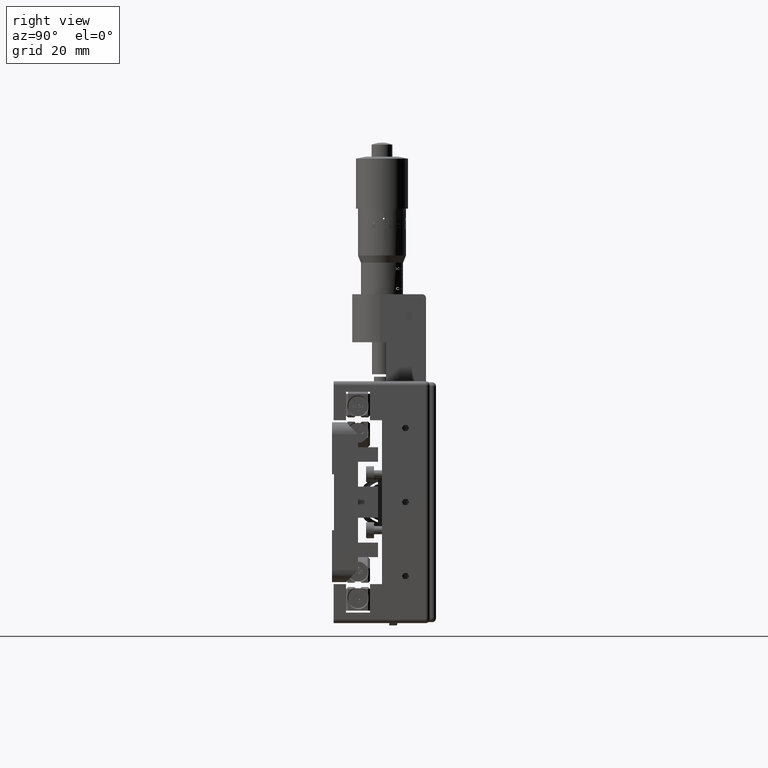
[diagram: clean part render]
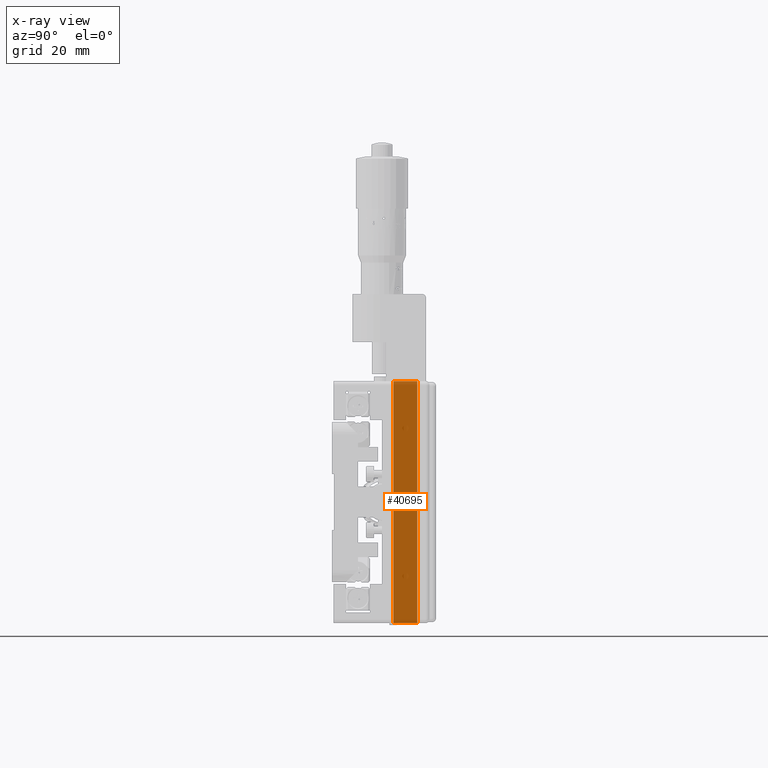
[diagram: x-ray — body ghosted, one internal face saturated and labeled with its STEP entity id]
A machine part, right view, then the same camera in x-ray: the body is ghosted and one INTERNAL B-rep face — a face not visible from any outside direction — is saturated and labeled: STEP entity #40695.
In plain terms, the highlighted planar face has unit normal (1, 0, 0).
Its self-contained STEP definition (entity closure, byte-faithful):
#580 = CARTESIAN_POINT ( 'NONE',  ( -27.60000000000124100, 21.09999999999877900, -30.25000000000009900 ) ) ;
#3373 = VECTOR ( 'NONE', #11097, 1000.000000000000000 ) ;
#9618 = ORIENTED_EDGE ( 'NONE', *, *, #51488, .F. ) ;
#10014 = ORIENTED_EDGE ( 'NONE', *, *, #64776, .T. ) ;
#11097 = DIRECTION ( 'NONE',  ( -0.0000000000000000000, -0.0000000000000000000, 1.000000000000000000 ) ) ;
#14555 = DIRECTION ( 'NONE',  ( 0.0000000000000000000, 1.000000000000000000, -0.0000000000000000000 ) ) ;
#17526 = DIRECTION ( 'NONE',  ( -0.0000000000000000000, -0.0000000000000000000, 1.000000000000000000 ) ) ;
#18866 = EDGE_CURVE ( 'NONE', #57285, #52963, #35941, .T. ) ;
#19234 = AXIS2_PLACEMENT_3D ( 'NONE', #51109, #19341, #56450 ) ;
#19341 = DIRECTION ( 'NONE',  ( 1.000000000000000000, 0.0000000000000000000, 0.0000000000000000000 ) ) ;
#21106 = CARTESIAN_POINT ( 'NONE',  ( -27.60000000000124100, -25.94636703928986800, -30.25000000000009900 ) ) ;
#22946 = VERTEX_POINT ( 'NONE', #23867 ) ;
#23170 = LINE ( 'NONE', #580, #62132 ) ;
#23867 = CARTESIAN_POINT ( 'NONE',  ( -27.60000000000124100, 15.09999999999878100, 30.24999999999989700 ) ) ;
#26446 = DIRECTION ( 'NONE',  ( 0.0000000000000000000, 1.000000000000000000, -0.0000000000000000000 ) ) ;
#28521 = EDGE_LOOP ( 'NONE', ( #53987, #62940, #10014, #9618 ) ) ;
#34254 = VECTOR ( 'NONE', #26446, 1000.000000000000000 ) ;
#35841 = CARTESIAN_POINT ( 'NONE',  ( -27.60000000000124100, 21.09999999999877900, -30.25000000000009900 ) ) ;
#35941 = LINE ( 'NONE', #21106, #34254 ) ;
#40695 = ADVANCED_FACE ( 'NONE', ( #65869 ), #56215, .T. ) ;
#42804 = CARTESIAN_POINT ( 'NONE',  ( -27.60000000000124100, 15.09999999999878100, -30.25000000000009900 ) ) ;
#45979 = CARTESIAN_POINT ( 'NONE',  ( -27.60000000000124100, 15.09999999999878100, -30.25000000000009900 ) ) ;
#46521 = CARTESIAN_POINT ( 'NONE',  ( -27.60000000000124100, -25.94636703928986800, 30.24999999999989700 ) ) ;
#49592 = VECTOR ( 'NONE', #14555, 1000.000000000000000 ) ;
#49811 = CARTESIAN_POINT ( 'NONE',  ( -27.60000000000124100, 21.09999999999877900, 30.24999999999989700 ) ) ;
#51109 = CARTESIAN_POINT ( 'NONE',  ( -27.60000000000124100, -25.94636703928986800, -30.25000000000009900 ) ) ;
#51488 = EDGE_CURVE ( 'NONE', #22946, #67823, #65390, .T. ) ;
#52963 = VERTEX_POINT ( 'NONE', #35841 ) ;
#53987 = ORIENTED_EDGE ( 'NONE', *, *, #64162, .F. ) ;
#56215 = PLANE ( 'NONE',  #19234 ) ;
#56450 = DIRECTION ( 'NONE',  ( 0.0000000000000000000, 0.0000000000000000000, -1.000000000000000000 ) ) ;
#57285 = VERTEX_POINT ( 'NONE', #45979 ) ;
#62132 = VECTOR ( 'NONE', #17526, 1000.000000000000000 ) ;
#62940 = ORIENTED_EDGE ( 'NONE', *, *, #18866, .T. ) ;
#64162 = EDGE_CURVE ( 'NONE', #57285, #22946, #65594, .T. ) ;
#64776 = EDGE_CURVE ( 'NONE', #52963, #67823, #23170, .T. ) ;
#65390 = LINE ( 'NONE', #46521, #49592 ) ;
#65594 = LINE ( 'NONE', #42804, #3373 ) ;
#65869 = FACE_OUTER_BOUND ( 'NONE', #28521, .T. ) ;
#67823 = VERTEX_POINT ( 'NONE', #49811 ) ;